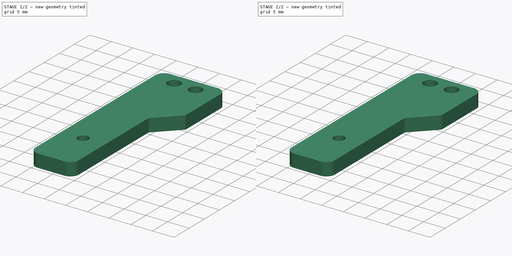
[diagram: build sequence overview — one tinted view per stage of 2, left to right]
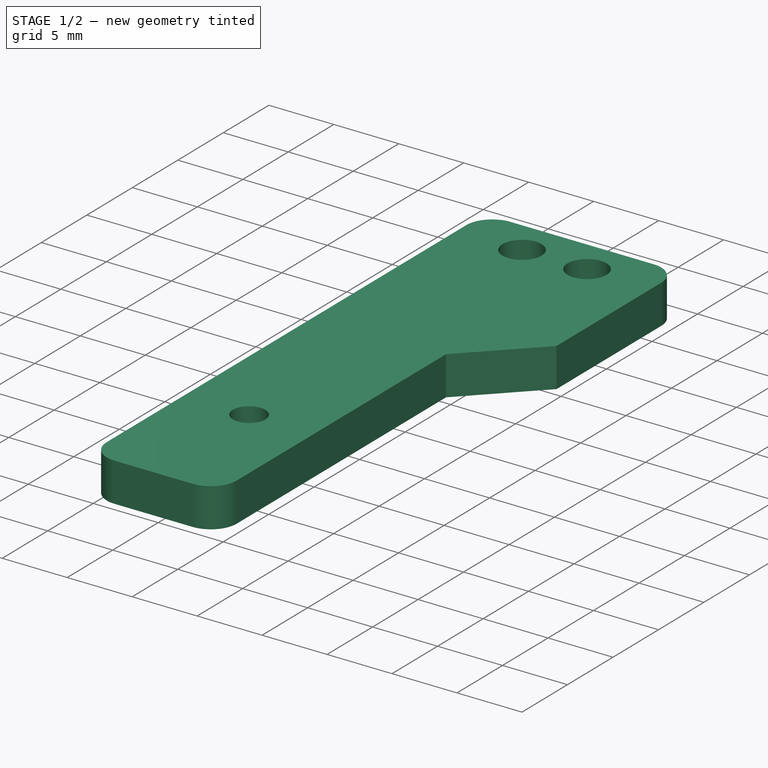
[diagram: stage 1 of 2 — iso view after this stage's code; geometry added in this stage tinted green]
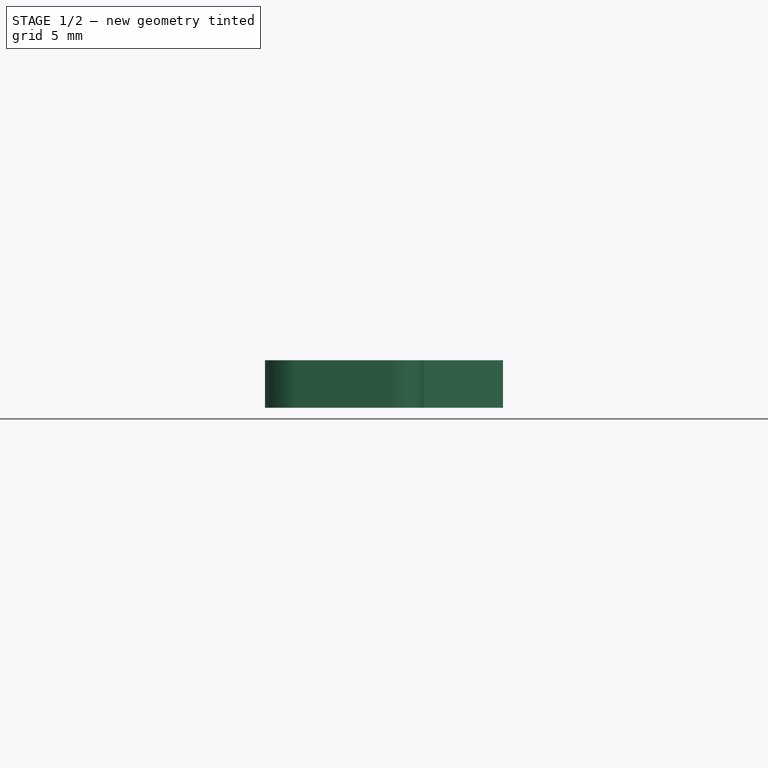
[diagram: stage 1 of 2 — front view after this stage's code; geometry added in this stage tinted green]
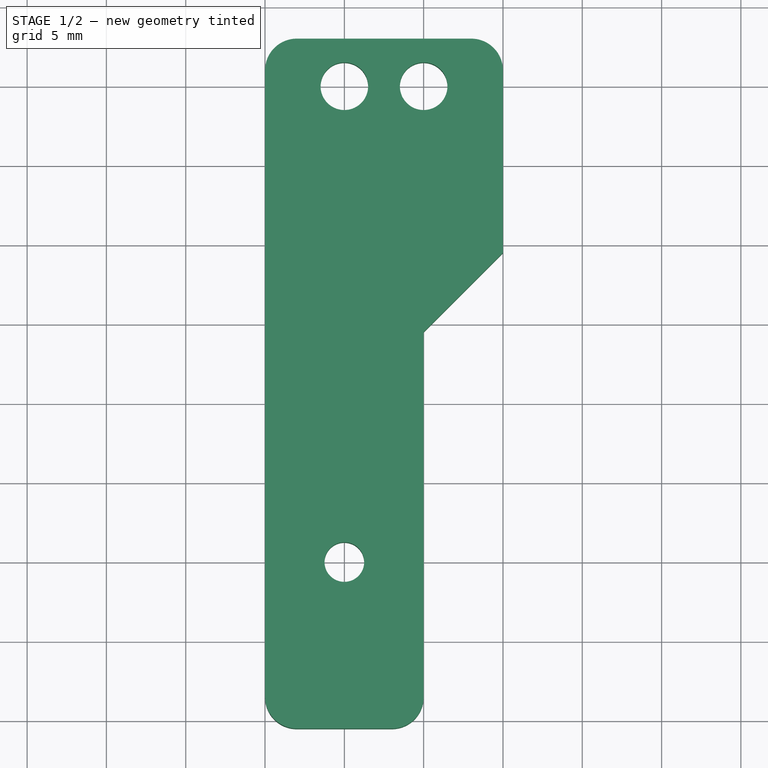
[diagram: stage 1 of 2 — top view after this stage's code; geometry added in this stage tinted green]
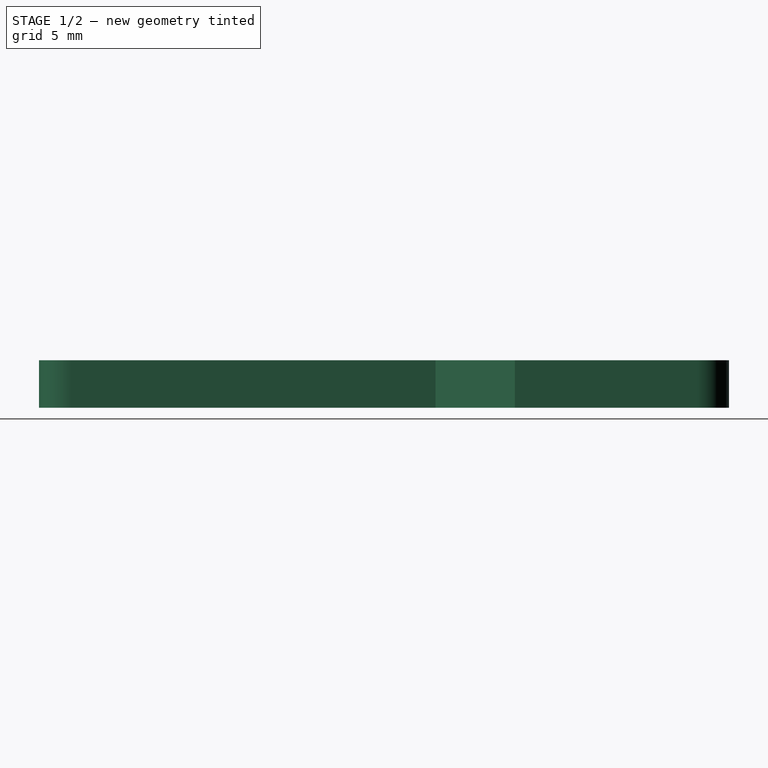
[diagram: stage 1 of 2 — right view after this stage's code; geometry added in this stage tinted green]
FCSTD DOCUMENT  (FreeCAD 0.19R24276 (Git))
Label: Guillotine_part_5_knife_holder_add_part
License: All rights reserved
LicenseURL: http://en.wikipedia.org/wiki/All_rights_reserved
objects: PartDesign::Fillet×2, Sketcher::SketchObject×1, PartDesign::Pad×1, PartDesign::Body×1
note: 8 computed .brp shape members not serialized (recipe doc carries the construction recipe); baked Part::Feature solids carry a one-line shape summary decoded from their .brp

FEATURE [Sketcher::SketchObject] Sketch
  FullyConstrained = false
  MapMode = 5
  Support = -> [XY_Plane]
  sketch-geometry (21):
    g0: Circle CenterX=0 CenterY=0 CenterZ=0 NormalX=0 NormalY=0 NormalZ=1 AngleXU=0 Radius=1.5
    g1: Circle CenterX=5 CenterY=0 CenterZ=0 NormalX=0 NormalY=0 NormalZ=1 AngleXU=0 Radius=1.5
    g2: LineSegment StartX=12.5 StartY=13 StartZ=0 EndX=12.5 EndY=-18.1564 EndZ=0
    g3: LineSegment StartX=-5 StartY=3 StartZ=0 EndX=-5 EndY=-10.5 EndZ=0
    g4: LineSegment StartX=25 StartY=13 StartZ=0 EndX=25 EndY=-10.5 EndZ=0
    g5: LineSegment StartX=-5 StartY=3 StartZ=0 EndX=10 EndY=3 EndZ=0
    g6: LineSegment StartX=10 StartY=3 StartZ=0 EndX=10 EndY=-40.5 EndZ=0
    g7: LineSegment StartX=10 StartY=-40.5 StartZ=0 EndX=-5 EndY=-40.5 EndZ=0
    g8: LineSegment StartX=-5 StartY=-40.5 StartZ=0 EndX=-5 EndY=3 EndZ=0
    g9: LineSegment StartX=25 StartY=13 StartZ=0 EndX=-5 EndY=13 EndZ=0
    g10: LineSegment StartX=-5 StartY=3 StartZ=0 EndX=-5 EndY=13 EndZ=0
    g11: LineSegment StartX=25 StartY=-10.5 StartZ=0 EndX=-5 EndY=-10.5 EndZ=0
    g12: Circle CenterX=0 CenterY=-30 CenterZ=0 NormalX=0 NormalY=0 NormalZ=1 AngleXU=0 Radius=1.25
    g13: LineSegment StartX=5 StartY=-40.5 StartZ=0 EndX=5 EndY=3 EndZ=0
    g14: LineSegment StartX=5 StartY=-15.5 StartZ=0 EndX=10 EndY=-10.5 EndZ=0
    g15: LineSegment StartX=-5 StartY=-40.5 StartZ=0 EndX=-5 EndY=3 EndZ=0
    g16: LineSegment StartX=-5 StartY=3 StartZ=0 EndX=10 EndY=3 EndZ=0
    g17: LineSegment StartX=-5 StartY=-40.5 StartZ=0 EndX=5 EndY=-40.5 EndZ=0
    g18: LineSegment StartX=5 StartY=-40.5 StartZ=0 EndX=5 EndY=-15.5 EndZ=0
    g19: LineSegment StartX=5 StartY=-15.5 StartZ=0 EndX=10 EndY=-10.5 EndZ=0
    g20: LineSegment StartX=10 StartY=-10.5 StartZ=0 EndX=10 EndY=3 EndZ=0
  constraints (57):
    c: Coincident(g0,g-1)
    c: PointOnObject(g1,g-1)
    c: Diameter(g0) = 3
    c: Equal(g0,g1)
    c: Vertical(g2)
    c: Vertical(g3)
    c: Vertical(g4)
    c: DistanceX(g3,g2) = 17.5
    c: DistanceX(g2,g4) = 12.5
    c: DistanceX(g-1,g1) = 5
    c: DistanceX(g-1,g2) = 12.5
    c: Coincident(g5,g6)
    c: Coincident(g6,g7)
    c: Coincident(g7,g8)
    c: Coincident(g8,g5)
    c: Horizontal(g5)
    c: Horizontal(g7)
    c: Vertical(g6)
    c: Vertical(g8)
    c: Coincident(g5,g3)
    c: DistanceY(g-1,g3) = 3
    c: DistanceY(g1,g2) = 13
    c: Horizontal(g2,g4)
    c: Coincident(g9,g4)
    c: Horizontal(g9)
    c: Coincident(g10,g3)
    c: Vertical(g10)
    c: Coincident(g9,g10)
    c: DistanceY(g4,g4) = 23.5
    c: Coincident(g11,g4)
    c: Horizontal(g11)
    c: Coincident(g3,g11)
    c: DistanceY(g8,g8) = 43.5
    c: PointOnObject(g12,g-2)
    c: DistanceY(g12,g-1) = 30
    c: Vertical(g13)
    c: PointOnObject(g14,g13)
    c: PointOnObject(g14,g6)
    c: Angle(g14,g11) = 2.35619
    c: DistanceX(g1,g5) = 5
    c: DistanceY(g14,g5) = 13.5
    c: DistanceX(g12,g14) = 5
    c: PointOnObject(g13,g7)
    c: PointOnObject(g13,g5)
    c: Coincident(g15,g7)
    c: Coincident(g15,g3)
    c: Coincident(g16,g15)
    c: Coincident(g5,g16)
    c: Diameter(g12) = 2.5
    c: Coincident(g17,g15)
    c: Coincident(g17,g13)
    c: Coincident(g18,g17)
    c: Coincident(g18,g14)
    c: Coincident(g19,g18)
    c: Coincident(g19,g14)
    c: Coincident(g20,g19)
    c: Coincident(g20,g16)
FEATURE [PartDesign::Pad] Pad
  Direction = (1,1,1)
  Length = 3
  Length2 = 100
  Profile = -> Sketch
  Type = 0
FEATURE [PartDesign::Fillet] Fillet
  Base = -> Pad [Edge5,Edge2,Edge1,Edge14]
  BaseFeature = -> Pad
  Radius = 2
  SupportTransform = false
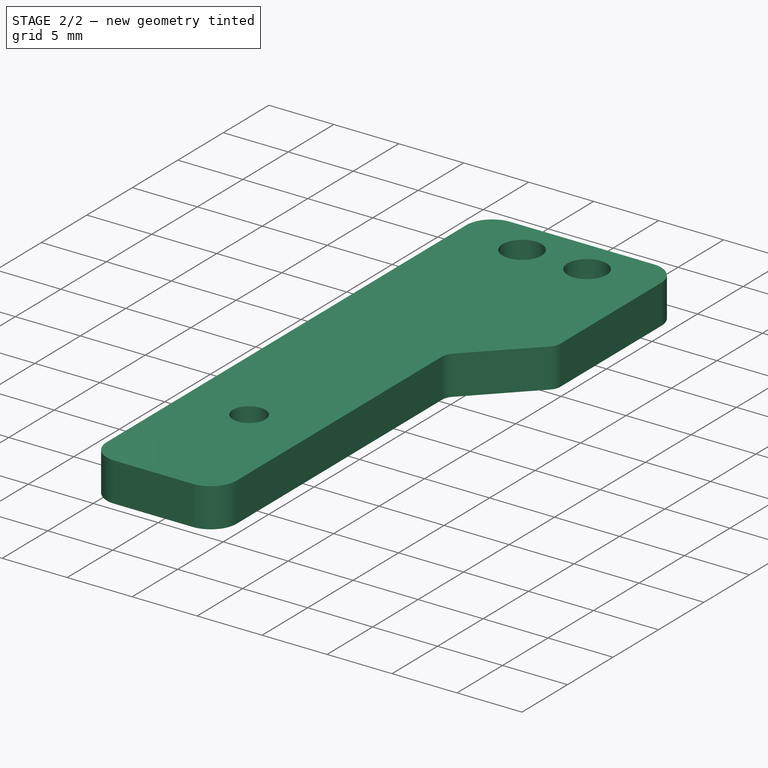
[diagram: stage 2 of 2 — iso view after this stage's code; geometry added in this stage tinted green]
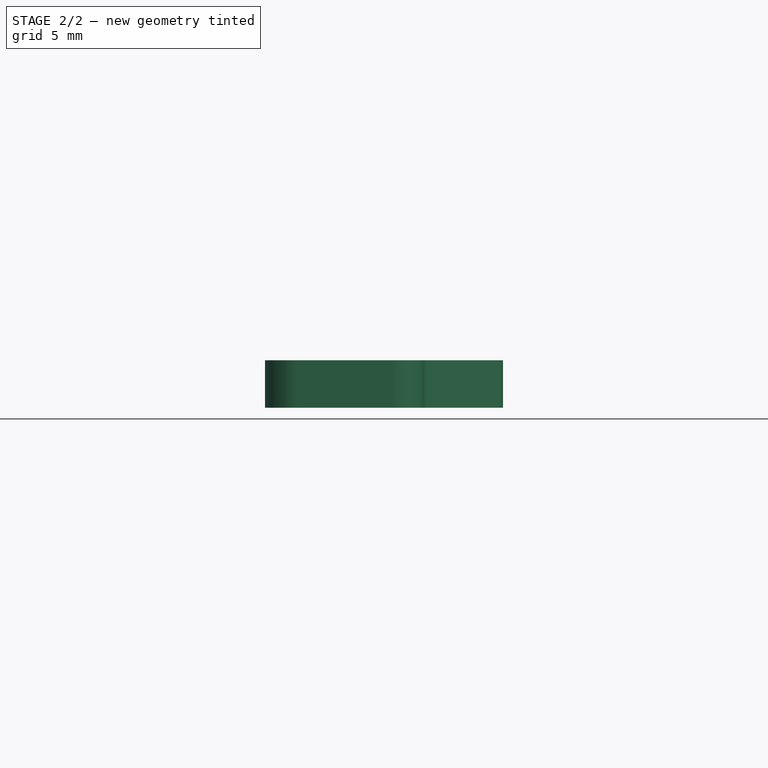
[diagram: stage 2 of 2 — front view after this stage's code; geometry added in this stage tinted green]
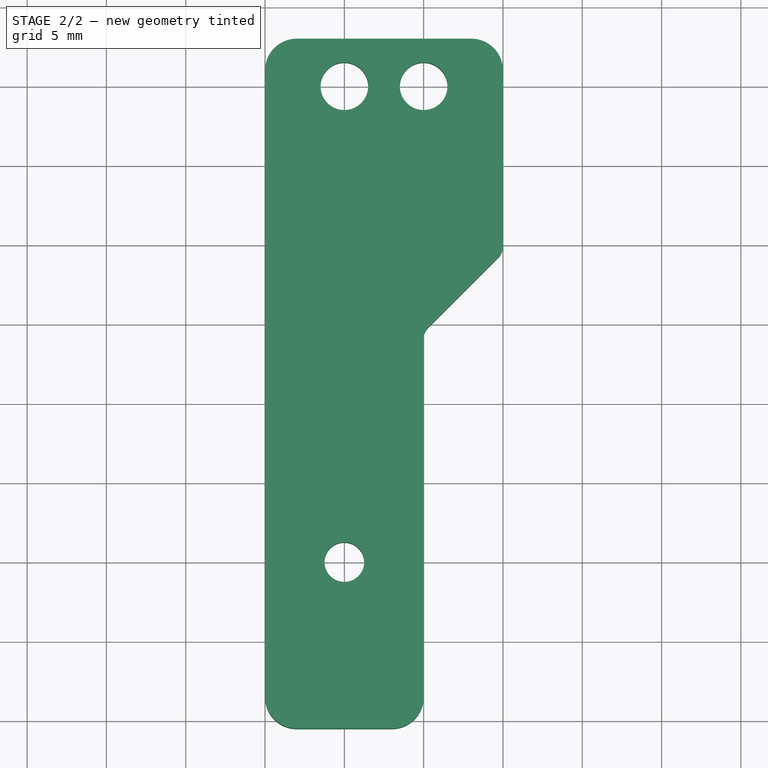
[diagram: stage 2 of 2 — top view after this stage's code; geometry added in this stage tinted green]
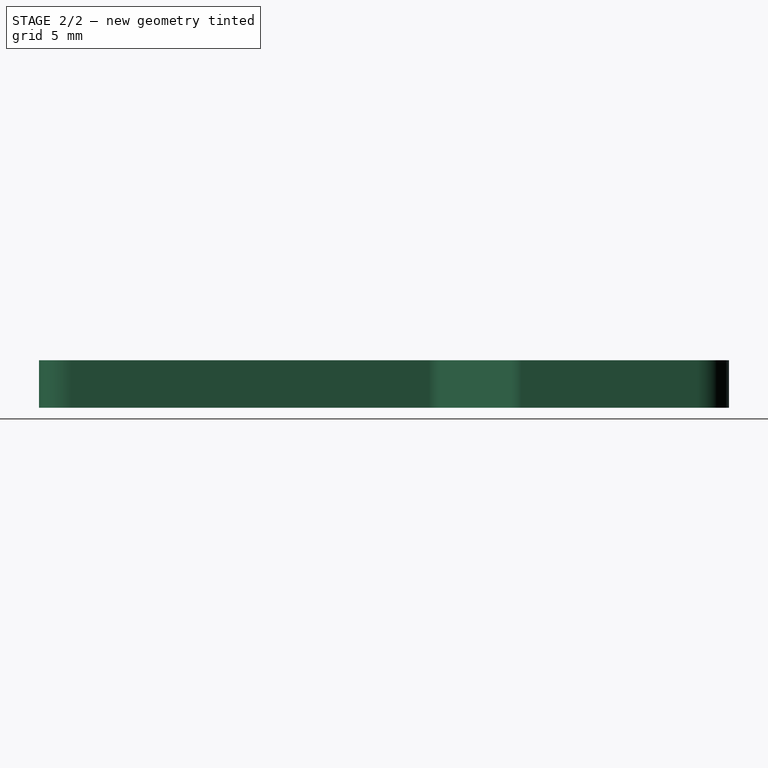
[diagram: stage 2 of 2 — right view after this stage's code; geometry added in this stage tinted green]
FEATURE [PartDesign::Fillet] Fillet001
  Base = -> Fillet [Edge36,Edge35]
  BaseFeature = -> Fillet
  Radius = 1
  SupportTransform = false
FEATURE [PartDesign::Body] Body
  Group = -> [Sketch,Pad,Fillet,Fillet001]
  Origin = -> Origin
  Tip = -> Fillet001
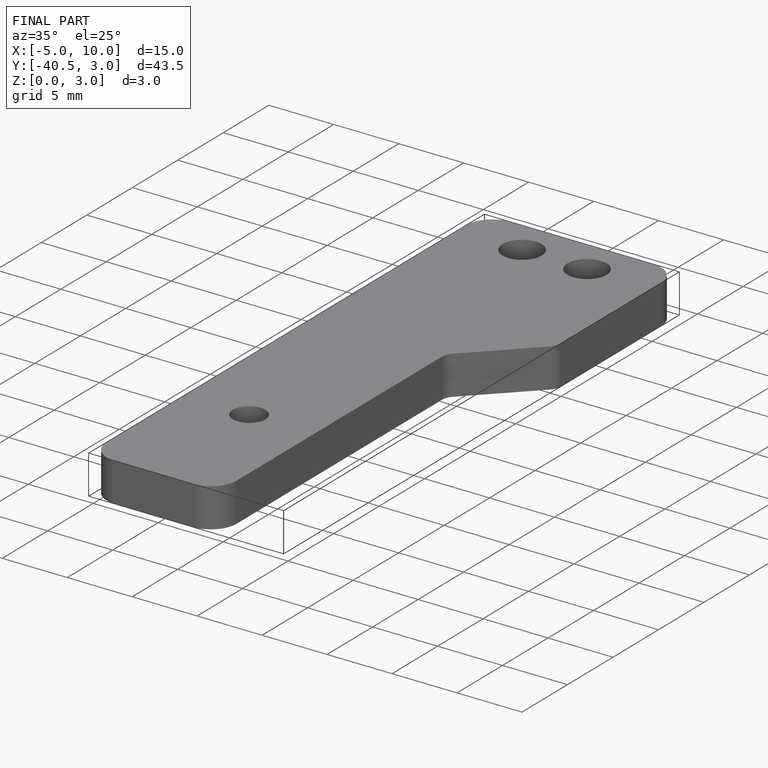
[diagram: finished part — iso view with bounding-box wireframe]
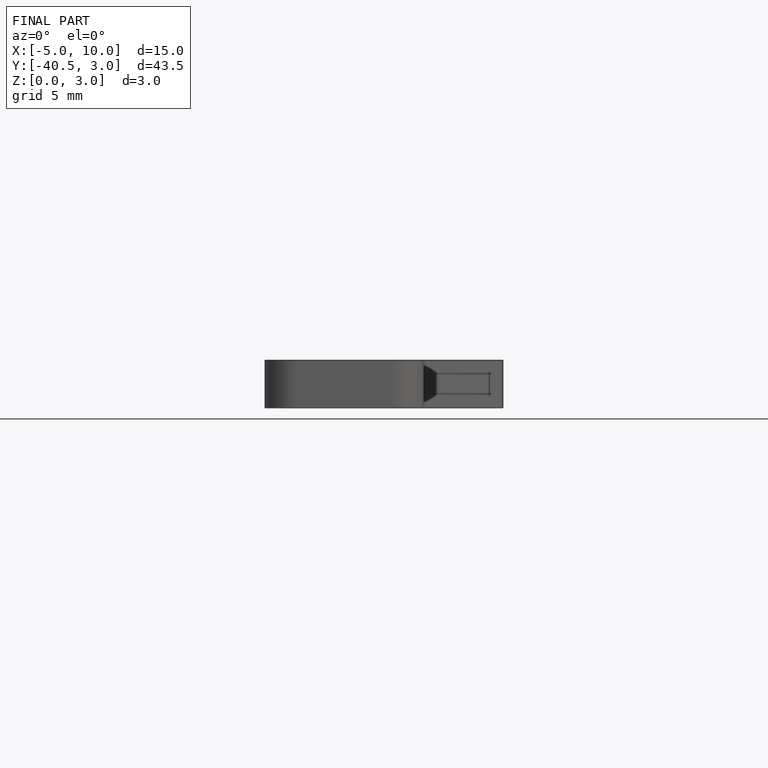
[diagram: finished part — front view with bounding-box wireframe]
